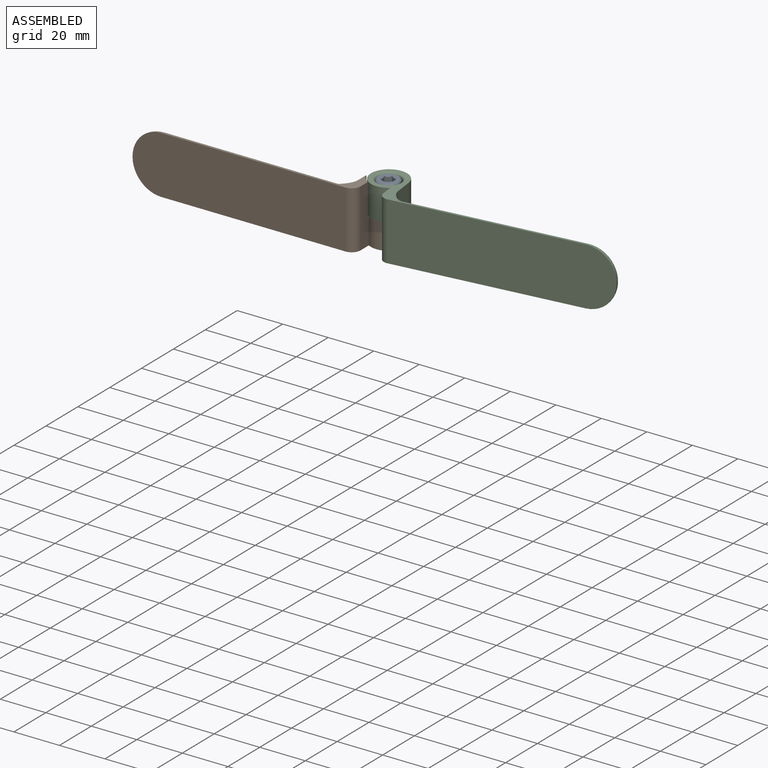
[diagram: assembled view]
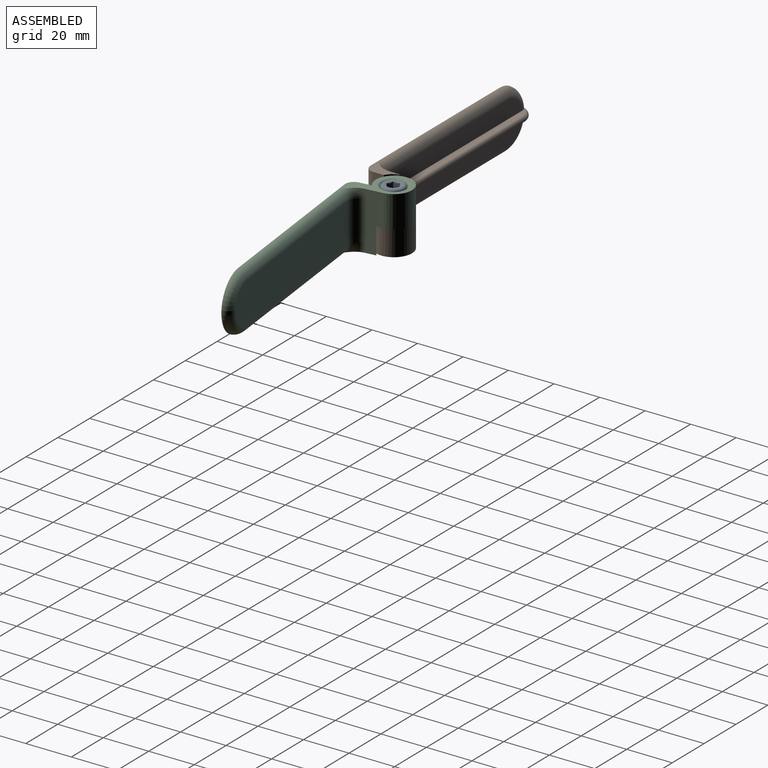
[diagram: assembled view, second angle]
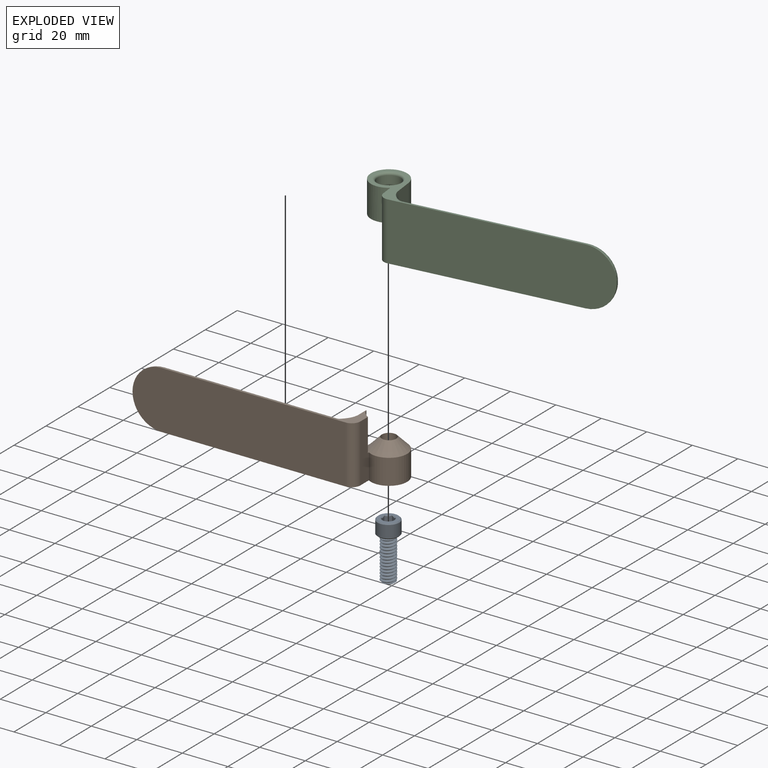
[diagram: exploded view]
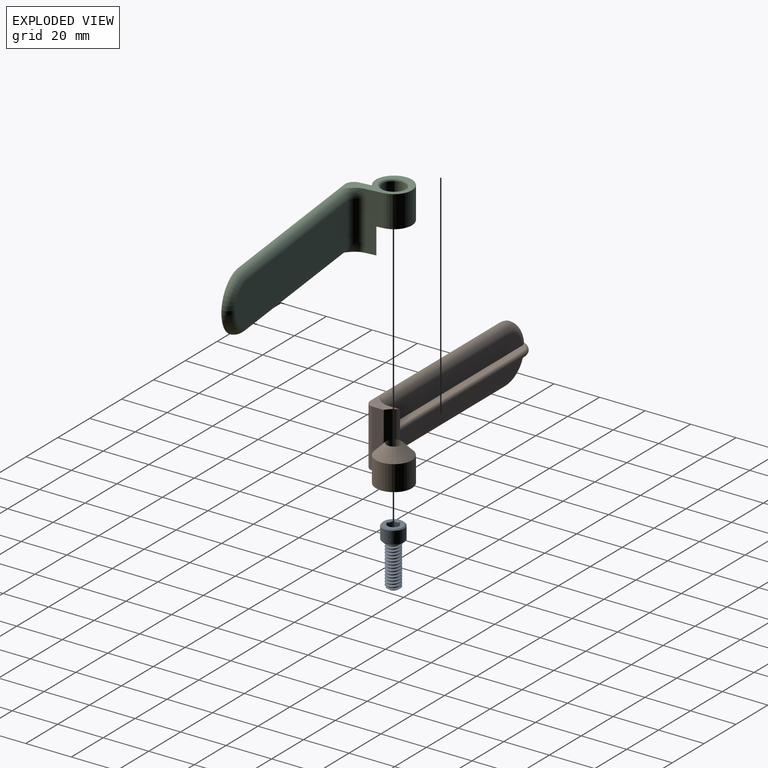
[diagram: exploded view, second angle]
ASSEMBLY  parts=3 mates=2
PART A: 84 faces, bbox 10.6x10.6x26.9 mm
  f0: plane 5.5x4.76mm, normal (0,0,-1), area 19.6mm2, adj f1,f79,f80,f81,f82,f83
  f1: plane 4.61x3.42mm, normal (-0.5,0.87,0), area 9.2mm2, adj f0,f2,f79,f83
  f2: revolved ~2.38x1.38mm, area 0mm2, adj f1,f3
  f3: plane 8.58x8.58mm, normal (0,0,-1), area 34mm2, adj f2,f4,f74,f75,f76,f77,f78
  f4: revolved ~9.53x9.53mm, area 19.1mm2, adj f3,f5
  f5: revolved ~9.53x9.53mm, area 161.5mm2, adj f4,f6
  f6: revolved ~9.53x9.53mm, area 19.1mm2, adj f5,f7
  f7: plane 9.07x9.07mm, normal (0,0,1), area 33.5mm2, adj f6,f8,f71,f72,f73
  f8: revolved ~3.18x3.18mm, area 0.6mm2, adj f7,f9,f71,f73
  f9: revolved ~6.35x3.18mm, area 1.6mm2, adj f8,f10,f71,f73
  f10: revolved ~6.35x3.18mm, area 1.6mm2, adj f9,f11,f71,f73
  f11: revolved ~6.35x3.18mm, area 1.6mm2, adj f10,f12,f71,f73
  f12: revolved ~6.35x3.18mm, area 1.6mm2, adj f11,f13,f71,f73
  f13: revolved ~6.35x3.18mm, area 1.6mm2, adj f12,f14,f71,f73
  f14: revolved ~6.35x3.18mm, area 1.6mm2, adj f13,f15,f71,f73
  f15: revolved ~6.35x3.18mm, area 1.6mm2, adj f14,f16,f71,f73
  f16: revolved ~6.35x3.18mm, area 1.6mm2, adj f15,f17,f71,f73
  f17: revolved ~6.35x3.18mm, area 1.6mm2, adj f16,f18,f71,f73
  f18: revolved ~6.35x3.18mm, area 1.6mm2, adj f17,f19,f71,f73
  f19: revolved ~6.35x3.18mm, area 1.6mm2, adj f18,f20,f71,f73
  f20: revolved ~6.35x3.18mm, area 1.6mm2, adj f19,f21,f71,f73
  f21: revolved ~6.35x3.18mm, area 1.6mm2, adj f20,f22,f71,f73
  f22: revolved ~6.35x3.18mm, area 1.6mm2, adj f21,f23,f71,f73
  f23: revolved ~6.35x3.18mm, area 1.6mm2, adj f22,f24,f71,f73
  f24: revolved ~6.35x3.18mm, area 1.6mm2, adj f23,f25,f71,f73
  f25: revolved ~6.35x3.18mm, area 1.6mm2, adj f24,f26,f71,f73
  f26: revolved ~6.35x3.18mm, area 1.6mm2, adj f25,f27,f71,f73
  f27: revolved ~6.35x3.18mm, area 1.6mm2, adj f26,f28,f71,f73
  f28: revolved ~6.35x3.18mm, area 1.6mm2, adj f27,f29,f71,f73
  f29: revolved ~6.35x3.18mm, area 1.6mm2, adj f28,f30,f71,f73
  f30: revolved ~6.35x3.18mm, area 1.6mm2, adj f29,f31,f71,f73
  f31: revolved ~6.35x3.18mm, area 1.6mm2, adj f30,f32,f71,f73
  f32: revolved ~6.35x3.18mm, area 1.6mm2, adj f31,f33,f71,f73
  f33: revolved ~6.35x3.18mm, area 1.6mm2, adj f32,f34,f71,f73
  f34: revolved ~6.35x3.18mm, area 1.6mm2, adj f33,f35,f71,f73
  f35: revolved ~6.35x3.18mm, area 1.6mm2, adj f34,f36,f71,f73
  f36: revolved ~6.35x3.18mm, area 1.6mm2, adj f35,f37,f71,f73
  f37: revolved ~3.8x3.17mm, area 0.7mm2, adj f36,f38,f71,f73
  f38: revolved ~6.35x3.18mm, area 7.1mm2, adj f37,f39,f69,f70,f71,f73
  f39: revolved ~2.34x2.11mm, area 0.4mm2, adj f38,f40,f71,f73
  f40: revolved ~4.7x2.35mm, area 1.2mm2, adj f39,f41,f71,f73
  f41: revolved ~4.7x2.35mm, area 1.2mm2, adj f40,f42,f71,f73
  f42: revolved ~4.7x2.35mm, area 1.2mm2, adj f41,f43,f71,f73
  f43: revolved ~4.7x2.35mm, area 1.2mm2, adj f42,f44,f71,f73
  f44: revolved ~4.7x2.35mm, area 1.2mm2, adj f43,f45,f71,f73
  f45: revolved ~4.7x2.35mm, area 1.2mm2, adj f44,f46,f71,f73
  f46: revolved ~4.7x2.35mm, area 1.2mm2, adj f45,f47,f71,f73
  f47: revolved ~4.7x2.35mm, area 1.2mm2, adj f46,f48,f71,f73
  f48: revolved ~4.7x2.35mm, area 1.2mm2, adj f47,f49,f71,f73
  f49: revolved ~4.7x2.35mm, area 1.2mm2, adj f48,f50,f71,f73
  f50: revolved ~4.7x2.35mm, area 1.2mm2, adj f49,f51,f71,f73
  f51: revolved ~4.7x2.35mm, area 1.2mm2, adj f50,f52,f71,f73
  f52: revolved ~4.7x2.35mm, area 1.2mm2, adj f51,f53,f71,f73
  f53: revolved ~4.7x2.35mm, area 1.2mm2, adj f52,f54,f71,f73
  f54: revolved ~4.7x2.35mm, area 1.2mm2, adj f53,f55,f71,f73
  f55: revolved ~4.7x2.35mm, area 1.2mm2, adj f54,f56,f71,f73
  f56: revolved ~4.7x2.35mm, area 1.2mm2, adj f55,f57,f71,f73
  f57: revolved ~4.7x2.35mm, area 1.2mm2, adj f56,f58,f71,f73
  f58: revolved ~4.7x2.35mm, area 1.2mm2, adj f57,f59,f71,f73
  f59: revolved ~4.7x2.35mm, area 1.2mm2, adj f58,f60,f71,f73
  f60: revolved ~4.7x2.35mm, area 1.2mm2, adj f59,f61,f71,f73
  f61: revolved ~4.7x2.35mm, area 1.2mm2, adj f60,f62,f71,f73
  f62: revolved ~4.7x2.35mm, area 1.2mm2, adj f61,f63,f71,f73
  f63: revolved ~4.7x2.35mm, area 1.2mm2, adj f62,f64,f71,f73
  f64: revolved ~4.7x2.35mm, area 1.2mm2, adj f63,f65,f71,f73
  f65: revolved ~4.7x2.35mm, area 1.2mm2, adj f64,f66,f71,f73
  f66: revolved ~4.7x2.35mm, area 1.2mm2, adj f65,f67,f71,f73
  f67: revolved ~4.7x2.35mm, area 1.2mm2, adj f66,f68,f71,f73
  f68: revolved ~4.7x2.35mm, area 1.2mm2, adj f67,f71,f72,f73
  f69: revolved ~5.91x2.96mm, area 5.7mm2, adj f38,f70,f71
  f70: plane 4.19x4.19mm, normal (0,0,1), area 13.8mm2, adj f38,f69
  f71: bspline ~20.07x7.33mm, area 243.1mm2, adj f7,f8,f9,f10,f11,f12,f13,f14
  f72: revolved ~2.35x2.35mm, area 0.4mm2, adj f7,f68,f71,f73
  f73: bspline ~19.49x7.33mm, area 242.2mm2, adj f7,f8,f9,f10,f11,f12,f13,f14
  f74: revolved ~2.38x1.38mm, area 0mm2, adj f3,f83
  f75: revolved ~2.75x0.69mm, area 0.7mm2, adj f3,f82
  f76: revolved ~2.38x1.38mm, area 0mm2, adj f3,f81
  f77: revolved ~2.38x1.38mm, area 0mm2, adj f3,f80
  f78: revolved ~2.75x0.37mm, area 0mm2, adj f3,f79
  f79: plane 4.61x3.79mm, normal (-1,0,0), area 9.1mm2, adj f0,f1,f78,f80
  f80: plane 4.61x3.42mm, normal (-0.5,-0.87,0), area 9.2mm2, adj f0,f77,f79,f81
  f81: plane 4.61x3.42mm, normal (0.5,-0.87,0), area 9.2mm2, adj f0,f76,f80,f82
  f82: plane 3.84x3.02mm, normal (1,0,0), area 9.2mm2, adj f0,f75,f81,f83
  f83: plane 4.61x3.42mm, normal (0.5,0.87,0), area 9.2mm2, adj f0,f1,f74,f82
PART B: 41 faces, bbox 110.6x26.5x44.9 mm
  f0: plane 84.68x7.62mm, normal (0,1,0), area 629mm2, adj f1,f32,f35,f38
  f1: torus R=8.89mm, axis (0,-1,0), area 100.9mm2, adj f0,f26,f32,f38,f39
  f2: plane 7.37x3.81mm, normal (0,0,1), area 3.4mm2, adj f15,f24,f25,f29
  f3: cylinder r=7.94mm len=15.88mm, axis (0,0,-1), area 463.9mm2, adj f11,f15,f24,f25
  f4: plane 5.05x4.06mm, normal (1,0,0), area 20.5mm2, adj f5,f12,f13,f21
  f5: plane 4.06x3.57mm, normal (0.71,0.71,0), area 20.5mm2, adj f4,f6,f13,f19
  f6: plane 5.05x4.06mm, normal (0,1,0), area 20.5mm2, adj f5,f7,f13,f17
  f7: plane 4.06x3.57mm, normal (-0.71,0.71,0), area 20.5mm2, adj f6,f8,f13,f16
  f8: plane 5.05x4.06mm, normal (-1,0,0), area 20.5mm2, adj f7,f9,f13,f18
  f9: plane 4.06x3.57mm, normal (-0.71,-0.71,0), area 20.5mm2, adj f8,f10,f13,f20
  f10: plane 5.05x4.06mm, normal (0,-1,0), area 20.5mm2, adj f9,f12,f13,f22
  f11: plane 23.81x20.96mm, normal (0,0,-1), area 83.1mm2, adj f3,f16,f17,f18,f19,f20,f21,f22
  f12: plane 4.06x3.57mm, normal (0.71,-0.71,0), area 20.5mm2, adj f4,f10,f13,f23
  f13: plane 12.19x12.19mm, normal (0,0,-1), area 91.5mm2, adj f4,f5,f6,f7,f8,f9,f10,f12
  f14: cylinder r=3.17mm len=10.8mm, axis (0,0,-1), area 215.4mm2, adj f13,f15
  f15: cone r=0mm half-angle=45deg, axis (0,0,-1), area 235.1mm2, adj f2,f3,f14
  f16: cylinder r=1.02mm len=4.88mm, axis (0.71,0.71,0), area 8.7mm2, adj f7,f11,f17,f18
  f17: cylinder r=1.02mm len=5.89mm, axis (1,0,0), area 8.7mm2, adj f6,f11,f16,f19
  f18: cylinder r=1.02mm len=5.89mm, axis (0,1,0), area 8.7mm2, adj f8,f11,f16,f20
  f19: cylinder r=1.02mm len=4.88mm, axis (0.71,-0.71,0), area 8.7mm2, adj f5,f11,f17,f21
  f20: cylinder r=1.02mm len=4.88mm, axis (-0.71,0.71,0), area 8.7mm2, adj f9,f11,f18,f22
  f21: cylinder r=1.02mm len=5.89mm, axis (0,-1,0), area 8.7mm2, adj f4,f11,f19,f23
  f22: cylinder r=1.02mm len=5.89mm, axis (-1,0,0), area 8.7mm2, adj f10,f11,f20,f23
  f23: cylinder r=1.02mm len=4.88mm, axis (-0.71,-0.71,0), area 8.7mm2, adj f11,f12,f21,f22
  f24: plane 25.4x7.84mm, normal (-1,0,0), area 138.3mm2, adj f2,f3,f11,f28,f29,f34,f35,f36
  f25: plane 25.4x5.29mm, normal (1,0,0), area 125.8mm2, adj f2,f3,f11,f28,f29,f33
  f26: plane 93.66x25.4mm, normal (0,-1,0), area 2309.8mm2, adj f1,f11,f28,f30,f31,f32,f33
  f27: plane 84.68x7.62mm, normal (0,1,0), area 629mm2, adj f30,f31,f35,f37
  f28: plane 12.99x8.89mm, normal (0,0,1), area 49.4mm2, adj f24,f25,f26,f29,f33,f36
  f29: cylinder r=8.45mm len=14.29mm, axis (0,0,-1), area 85.9mm2, adj f2,f24,f25,f28
  f30: cylinder r=3.81mm len=75.88mm, axis (1,0,0), area 454.1mm2, adj f26,f27,f31,f36
  f31: torus R=8.89mm, axis (0,-1,0), area 100.8mm2, adj f26,f27,f30,f37,f39
  f32: cylinder r=3.81mm len=75.88mm, axis (-1,0,0), area 454.1mm2, adj f0,f1,f26,f34
  f33: cylinder r=3.81mm len=25.4mm, axis (0,0,-1), area 152mm2, adj f11,f25,f26,f28
  f34: torus R=8.89mm, axis (1,0,0), area 35.7mm2, adj f11,f24,f32,f35
  f35: cylinder r=5.08mm len=17.78mm, axis (0,0,1), area 125.6mm2, adj f0,f24,f27,f34,f36,f37,f38,f40
  f36: torus R=8.89mm, axis (1,0,0), area 35.7mm2, adj f24,f28,f30,f35
  f37: plane 90.71x2.91mm, normal (0,0,1), area 222.7mm2, adj f27,f31,f35,f39,f40
  f38: plane 90.71x2.91mm, normal (0,0,-1), area 222.7mm2, adj f0,f1,f35,f39,f40
  f39: torus R=6.35mm, axis (0,0,1), area 36.9mm2, adj f1,f31,f37,f38,f40
  f40: cylinder r=1.27mm len=85.88mm, axis (1,0,0), area 342mm2, adj f35,f37,f38,f39
PART C: 22 faces, bbox 112.6x28.5x46.8 mm
  f0: cylinder r=7.94mm len=15.88mm, axis (0,0,-1), area 581.5mm2, adj f4,f5,f7,f10
  f1: plane 10.16x10.16mm, normal (0,0,1), area 49.4mm2, adj f2,f3
  f2: cylinder r=3.17mm len=6.35mm, axis (0,0,-1), area 56.2mm2, adj f1,f5
  f3: cylinder r=5.08mm len=10.16mm, axis (0,0,-1), area 170.3mm2, adj f1,f6
  f4: plane 25.82x22.96mm, normal (0,0,1), area 134mm2, adj f0,f6,f7,f8,f10,f18,f19
  f5: cone r=0mm half-angle=45deg, axis (0,0,-1), area 235.1mm2, adj f0,f2,f11
  f6: torus R=6.1mm, axis (0,0,1), area 54.6mm2, adj f3,f4
  f7: plane 25.4x5.29mm, normal (-1,0,0), area 127.5mm2, adj f0,f4,f11,f12,f13,f18
  f8: plane 93.66x25.4mm, normal (0,-1,0), area 2309.8mm2, adj f4,f12,f15,f16,f17,f18
  f9: plane 84.77x17.78mm, normal (0,1,0), area 1473.3mm2, adj f15,f16,f17,f20
  f10: plane 25.4x7.84mm, normal (1,0,0), area 146.5mm2, adj f0,f4,f11,f12,f14,f19,f20,f21
  f11: plane 7.37x3.82mm, normal (0,0,-1), area 3.4mm2, adj f5,f7,f10,f13,f14
  f12: plane 15x10.9mm, normal (0,0,-1), area 49.4mm2, adj f7,f8,f10,f13,f14,f18,f21
  f13: cylinder r=8.45mm len=11.47mm, axis (0,0,1), area 52.4mm2, adj f7,f11,f12,f14
  f14: extruded ~11.47x1.31mm, area 16.5mm2, adj f10,f11,f12,f13
  f15: cylinder r=3.81mm len=75.88mm, axis (-1,0,0), area 454.1mm2, adj f8,f9,f16,f19
  f16: torus R=8.89mm, axis (0,-1,0), area 212.7mm2, adj f8,f9,f15,f17
  f17: cylinder r=3.81mm len=75.88mm, axis (-1,0,0), area 454.1mm2, adj f8,f9,f16,f21
  f18: cylinder r=3.81mm len=25.4mm, axis (0,0,-1), area 152mm2, adj f4,f7,f8,f12
  f19: torus R=8.89mm, axis (-1,0,0), area 41.5mm2, adj f4,f10,f15,f20
  f20: cylinder r=5.08mm len=17.78mm, axis (0,0,-1), area 141.9mm2, adj f9,f10,f19,f21
  f21: torus R=8.89mm, axis (-1,0,0), area 41.5mm2, adj f10,f12,f17,f20
PLACE A rot(axis=(1,0.06,0),180deg) t=(-18.88,-3.72,-7.88)mm
PLACE B t=(-18.8,-3.43,-7.52)mm fixed
PLACE C rot(axis=(0,0,1),6.7deg) t=(-18.8,-3.43,-7.88)mm
MATE revolute B.f15 <-> C.f5  axis (0,0,-1) through (-18.8,-3.43,8.35)mm
MATE revolute C.f5 <-> A.f7  axis (0,0,1) through (-18.8,-3.43,11.17)mm
